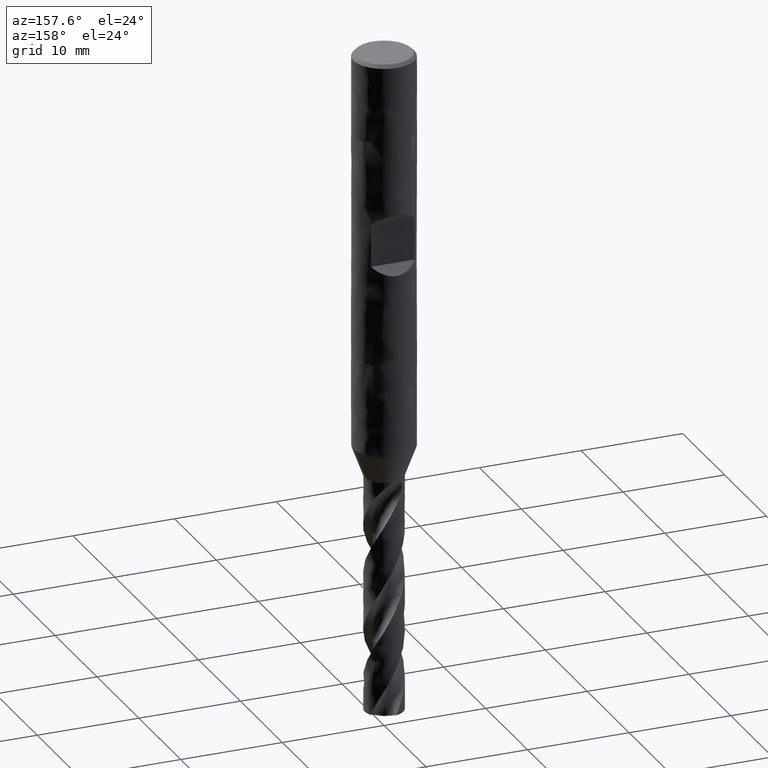
[diagram: clean part render]
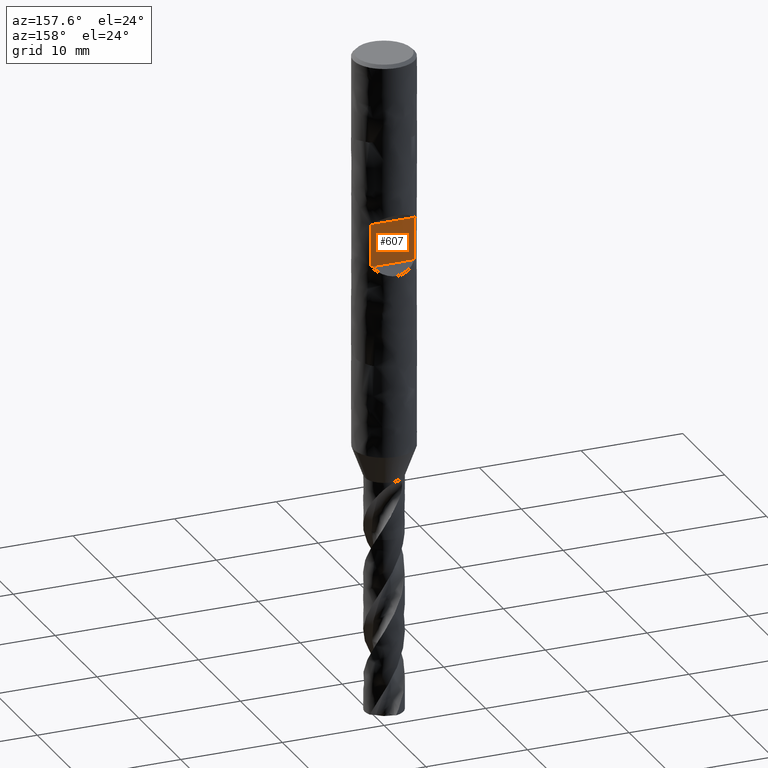
[diagram: same view with one face highlighted and labeled with its STEP entity id]
A machine part, auxiliary view. The second image highlights one B-rep face of the part: STEP entity #607.
In plain terms, the highlighted planar face has unit normal (0, 1, 0).
Its self-contained STEP definition (entity closure, byte-faithful):
#420 = EDGE_CURVE('', #421, #423, #425, .T.);
#421 = VERTEX_POINT('', #422);
#422 = CARTESIAN_POINT('', (2.14242852856285, 2.1, -15.9));
#423 = VERTEX_POINT('', #424);
#424 = CARTESIAN_POINT('', (2.14242852856285, 2.1, -20.1));
#425 = LINE('', #426, #427);
#426 = CARTESIAN_POINT('', (2.14242852856285, 2.1, -15.9));
#427 = VECTOR('', #428, 4.2);
#428 = DIRECTION('', (0., 4.44089209850063E-16, -4.2));
#431 = VERTEX_POINT('', #432);
#432 = CARTESIAN_POINT('', (-2.14242852856285, 2.1, -15.9));
#508 = EDGE_CURVE('', #431, #509, #511, .T.);
#509 = VERTEX_POINT('', #510);
#510 = CARTESIAN_POINT('', (-2.14242852856285, 2.1, -20.1));
#511 = LINE('', #512, #513);
#512 = CARTESIAN_POINT('', (-2.14242852856285, 2.1, -15.9));
#513 = VECTOR('', #514, 4.2);
#514 = DIRECTION('', (0., -4.44089209850063E-16, -4.2));
#607 = ADVANCED_FACE('', (#608), #624, .T.);
#608 = FACE_OUTER_BOUND('', #609, .T.);
#609 = EDGE_LOOP('', (#610, #611, #617, #618));
#610 = ORIENTED_EDGE('', *, *, #420, .T.);
#611 = ORIENTED_EDGE('', *, *, #612, .T.);
#612 = EDGE_CURVE('', #423, #509, #613, .T.);
#613 = LINE('', #614, #615);
#614 = CARTESIAN_POINT('', (2.14242852856285, 2.1, -20.1));
#615 = VECTOR('', #616, 4.28485705712571);
#616 = DIRECTION('', (-4.28485705712571, 4.44089209850063E-16, 0.));
#617 = ORIENTED_EDGE('', *, *, #508, .F.);
#618 = ORIENTED_EDGE('', *, *, #619, .F.);
#619 = EDGE_CURVE('', #421, #431, #620, .T.);
#620 = LINE('', #621, #622);
#621 = CARTESIAN_POINT('', (2.14242852856285, 2.1, -15.9));
#622 = VECTOR('', #623, 4.28485705712571);
#623 = DIRECTION('', (-4.28485705712571, 4.44089209850063E-16, 0.));
#624 = PLANE('', #625);
#625 = AXIS2_PLACEMENT_3D('', #626, #627, #628);
#626 = CARTESIAN_POINT('', (3., 2.1, -20.1));
#627 = DIRECTION('', (0., 1., 1.05735526154777E-16));
#628 = DIRECTION('', (-1., 0., 0.));